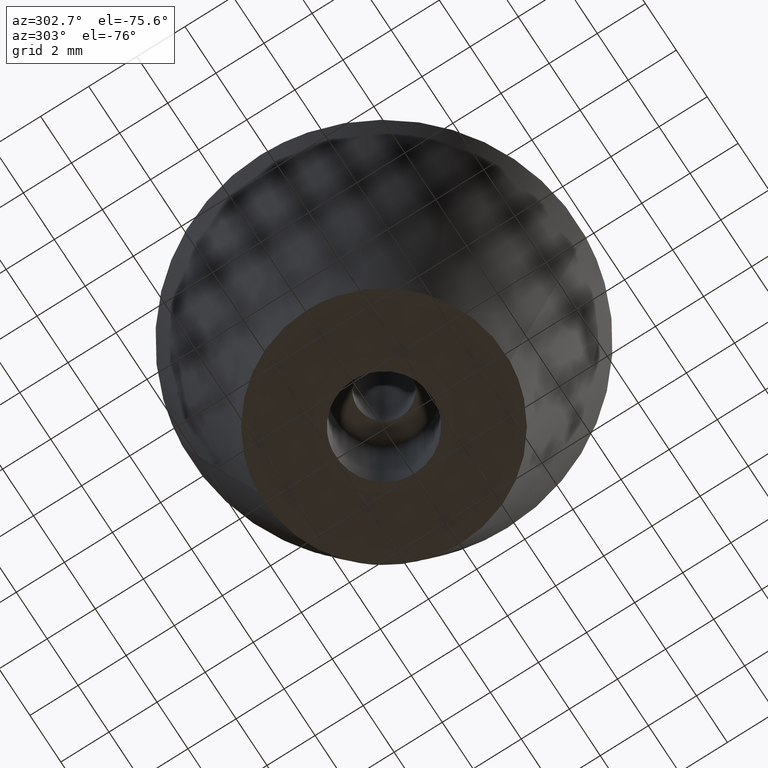
[diagram: clean part render]
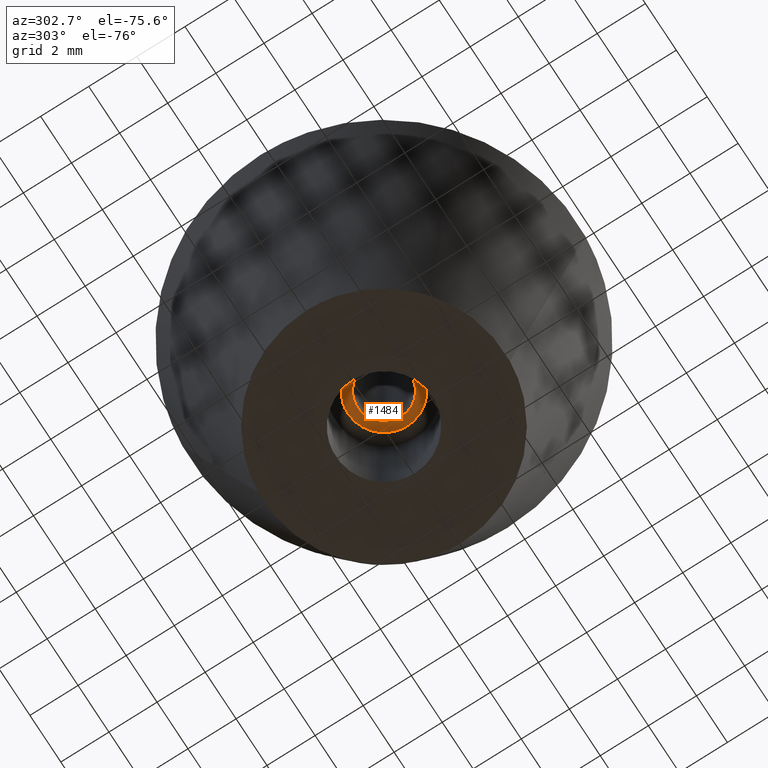
[diagram: same view with one face highlighted and labeled with its STEP entity id]
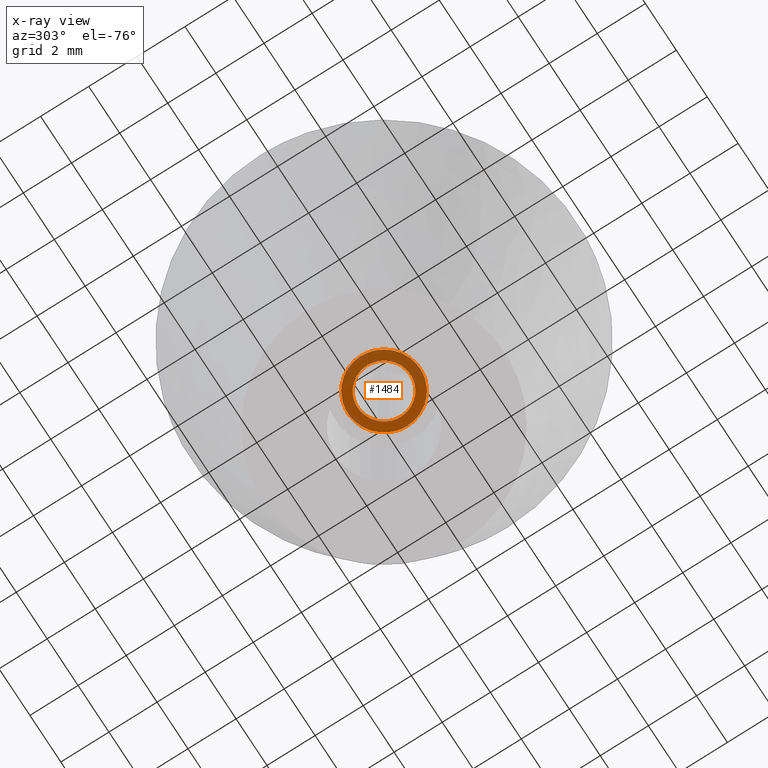
[diagram: x-ray of the same camera — body ghosted, the highlighted face saturated]
A machine part, auxiliary view. The second image highlights one B-rep face of the part: STEP entity #1484.
The next image is the same camera in x-ray: the body ghosted, the highlighted face saturated — about 44% of this face is hidden behind the body in this view.
In plain terms, the highlighted face is a freeform B-spline surface patch.
Its self-contained STEP definition (entity closure, byte-faithful):
#720=CARTESIAN_POINT('',(-0.129835709327981,1.092310710640268,5.0));
#721=VERTEX_POINT('',#720);
#727=CARTESIAN_POINT('',(1.100000000000000,0.0,5.0));
#728=VERTEX_POINT('',#727);
#729=CARTESIAN_POINT('',(-0.129835709327981,1.092310710640269,5.0));
#730=CARTESIAN_POINT('',(-0.065145546918932,1.100000000000000,4.999999999999999));
#731=CARTESIAN_POINT('',(0.0,1.100000000000000,5.0));
#732=CARTESIAN_POINT('',(1.100000000000000,1.100000000000000,5.000000000000001));
#733=CARTESIAN_POINT('',(1.100000000000000,0.0,5.0));
#741=(BOUNDED_CURVE()B_SPLINE_CURVE(2,(#729,#730,#731,#732,#733),.UNSPECIFIED.,.F.,.U.)B_SPLINE_CURVE_WITH_KNOTS((3,2,3),(0.229562775034887,0.250000000000000,0.500000000000000),.UNSPECIFIED.)CURVE()GEOMETRIC_REPRESENTATION_ITEM()RATIONAL_B_SPLINE_CURVE((0.956027345178793,0.976056301585414,1.0,0.707106781186548,1.0))REPRESENTATION_ITEM(''));
#742=EDGE_CURVE('',#721,#728,#741,.T.);
#744=CARTESIAN_POINT('',(0.067153393495066,-1.097948278263643,5.0));
#745=VERTEX_POINT('',#744);
#746=CARTESIAN_POINT('',(1.100000000000000,0.0,5.0));
#747=CARTESIAN_POINT('',(1.100000000000000,-1.034776673583570,4.999999999999999));
#748=CARTESIAN_POINT('',(0.067153393495066,-1.097948278263642,5.0));
#756=(BOUNDED_CURVE()B_SPLINE_CURVE(2,(#746,#747,#748),.UNSPECIFIED.,.F.,.U.)B_SPLINE_CURVE_WITH_KNOTS((3,3),(0.500000000000000,0.739332962239855),.UNSPECIFIED.)CURVE()GEOMETRIC_REPRESENTATION_ITEM()RATIONAL_B_SPLINE_CURVE((1.0,0.719603993285641,0.976072041668673))REPRESENTATION_ITEM(''));
#757=EDGE_CURVE('',#728,#745,#756,.T.);
#835=CARTESIAN_POINT('',(-1.100000000000000,0.0,5.0));
#836=VERTEX_POINT('',#835);
#837=CARTESIAN_POINT('',(0.067153393495066,-1.097948278263643,5.0));
#838=CARTESIAN_POINT('',(0.033608039635190,-1.100000000000000,5.0));
#839=CARTESIAN_POINT('',(0.0,-1.100000000000000,5.0));
#840=CARTESIAN_POINT('',(-1.100000000000000,-1.100000000000000,5.000000000000001));
#841=CARTESIAN_POINT('',(-1.100000000000000,0.0,5.0));
#849=(BOUNDED_CURVE()B_SPLINE_CURVE(2,(#837,#838,#839,#840,#841),.UNSPECIFIED.,.F.,.U.)B_SPLINE_CURVE_WITH_KNOTS((3,2,3),(0.739332962239855,0.750000000000000,1.0),.UNSPECIFIED.)CURVE()GEOMETRIC_REPRESENTATION_ITEM()RATIONAL_B_SPLINE_CURVE((0.976072041668673,0.987502787900906,1.0,0.707106781186548,1.0))REPRESENTATION_ITEM(''));
#850=EDGE_CURVE('',#745,#836,#849,.T.);
#852=CARTESIAN_POINT('',(-1.100000000000000,0.0,5.0));
#853=CARTESIAN_POINT('',(-1.100000000000000,0.976993733872441,4.999999999999999));
#854=CARTESIAN_POINT('',(-0.129835709327981,1.092310710640269,5.0));
#862=(BOUNDED_CURVE()B_SPLINE_CURVE(2,(#852,#853,#854),.UNSPECIFIED.,.F.,.U.)B_SPLINE_CURVE_WITH_KNOTS((3,3),(0.0,0.229562775034887),.UNSPECIFIED.)CURVE()GEOMETRIC_REPRESENTATION_ITEM()RATIONAL_B_SPLINE_CURVE((1.0,0.731050479601134,0.956027345178793))REPRESENTATION_ITEM(''));
#863=EDGE_CURVE('',#836,#721,#862,.T.);
#891=CARTESIAN_POINT('',(-0.177051351996448,1.489514289544155,5.0));
#892=VERTEX_POINT('',#891);
#893=CARTESIAN_POINT('',(1.500000000000000,0.0,5.0));
#894=VERTEX_POINT('',#893);
#895=CARTESIAN_POINT('',(-0.177051351996448,1.489514289544155,5.0));
#896=CARTESIAN_POINT('',(-0.088836179489295,1.500000000000000,5.0));
#897=CARTESIAN_POINT('',(0.0,1.500000000000000,5.0));
#898=CARTESIAN_POINT('',(1.500000000000000,1.500000000000000,5.000000000000001));
#899=CARTESIAN_POINT('',(1.500000000000000,0.0,5.0));
#907=(BOUNDED_CURVE()B_SPLINE_CURVE(2,(#895,#896,#897,#898,#899),.UNSPECIFIED.,.F.,.U.)B_SPLINE_CURVE_WITH_KNOTS((3,2,3),(0.229562473513078,0.250000000000000,0.500000000000000),.UNSPECIFIED.)CURVE()GEOMETRIC_REPRESENTATION_ITEM()RATIONAL_B_SPLINE_CURVE((0.956026754182855,0.976055948330640,1.0,0.707106781186548,1.0))REPRESENTATION_ITEM(''));
#908=EDGE_CURVE('',#892,#894,#907,.T.);
#949=CARTESIAN_POINT('',(0.091572809311081,-1.497202197632262,5.0));
#950=VERTEX_POINT('',#949);
#956=CARTESIAN_POINT('',(1.500000000000000,0.0,5.0));
#957=CARTESIAN_POINT('',(1.500000000000001,-1.411059100341942,5.0));
#958=CARTESIAN_POINT('',(0.091572809311081,-1.497202197632263,5.0));
#966=(BOUNDED_CURVE()B_SPLINE_CURVE(2,(#956,#957,#958),.UNSPECIFIED.,.F.,.U.)B_SPLINE_CURVE_WITH_KNOTS((3,3),(0.500000000000000,0.739332962239942),.UNSPECIFIED.)CURVE()GEOMETRIC_REPRESENTATION_ITEM()RATIONAL_B_SPLINE_CURVE((1.0,0.719603993285540,0.976072041668859))REPRESENTATION_ITEM(''));
#967=EDGE_CURVE('',#894,#950,#966,.T.);
#990=CARTESIAN_POINT('',(-1.500000000000000,0.0,5.0));
#991=VERTEX_POINT('',#990);
#992=CARTESIAN_POINT('',(-1.500000000000000,0.0,5.0));
#993=CARTESIAN_POINT('',(-1.500000000000000,1.332261788906676,5.0));
#994=CARTESIAN_POINT('',(-0.177051351996448,1.489514289544155,5.0));
#1002=(BOUNDED_CURVE()B_SPLINE_CURVE(2,(#992,#993,#994),.UNSPECIFIED.,.F.,.U.)B_SPLINE_CURVE_WITH_KNOTS((3,3),(0.0,0.229562473513078),.UNSPECIFIED.)CURVE()GEOMETRIC_REPRESENTATION_ITEM()RATIONAL_B_SPLINE_CURVE((1.0,0.731050832855907,0.956026754182855))REPRESENTATION_ITEM(''));
#1003=EDGE_CURVE('',#991,#892,#1002,.T.);
#1005=CARTESIAN_POINT('',(0.091572809311081,-1.497202197632263,5.000000000000001));
#1006=CARTESIAN_POINT('',(0.045829144956703,-1.500000000000000,5.000000000000001));
#1007=CARTESIAN_POINT('',(0.0,-1.500000000000000,5.0));
#1008=CARTESIAN_POINT('',(-1.500000000000000,-1.500000000000000,5.000000000000001));
#1009=CARTESIAN_POINT('',(-1.500000000000000,0.0,5.0));
#1017=(BOUNDED_CURVE()B_SPLINE_CURVE(2,(#1005,#1006,#1007,#1008,#1009),.UNSPECIFIED.,.F.,.U.)B_SPLINE_CURVE_WITH_KNOTS((3,2,3),(0.739332962239941,0.750000000000000,1.0),.UNSPECIFIED.)CURVE()GEOMETRIC_REPRESENTATION_ITEM()RATIONAL_B_SPLINE_CURVE((0.976072041668857,0.987502787901007,1.0,0.707106781186548,1.0))REPRESENTATION_ITEM(''));
#1018=EDGE_CURVE('',#950,#991,#1017,.T.);
#1467=CARTESIAN_POINT('',(-1.649849994185418,-1.649813485518671,5.0));
#1468=CARTESIAN_POINT('',(1.649850074651688,-1.649813485518671,5.0));
#1469=CARTESIAN_POINT('',(-1.649849994185418,1.649822712317682,5.0));
#1470=CARTESIAN_POINT('',(1.649850074651688,1.649822712317682,5.0));
#1471=B_SPLINE_SURFACE_WITH_KNOTS('',1,1,((#1467,#1469),(#1468,#1470)),.UNSPECIFIED.,.F.,.F.,.U.,(2,2),(2,2),(0.0,3.299700068837106),(0.0,3.299636197836353),.UNSPECIFIED.);
#1472=ORIENTED_EDGE('',*,*,#1003,.T.);
#1473=ORIENTED_EDGE('',*,*,#908,.T.);
#1474=ORIENTED_EDGE('',*,*,#967,.T.);
#1475=ORIENTED_EDGE('',*,*,#1018,.T.);
#1476=EDGE_LOOP('',(#1472,#1473,#1474,#1475));
#1477=FACE_OUTER_BOUND('',#1476,.T.);
#1478=ORIENTED_EDGE('',*,*,#757,.F.);
#1479=ORIENTED_EDGE('',*,*,#742,.F.);
#1480=ORIENTED_EDGE('',*,*,#863,.F.);
#1481=ORIENTED_EDGE('',*,*,#850,.F.);
#1482=EDGE_LOOP('',(#1478,#1479,#1480,#1481));
#1483=FACE_BOUND('',#1482,.T.);
#1484=ADVANCED_FACE('',(#1477,#1483),#1471,.F.);